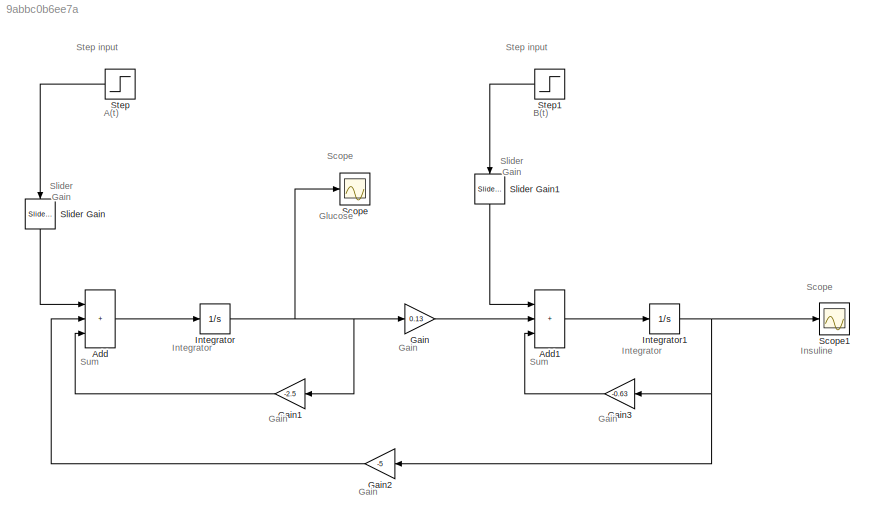
MODEL slx_9abbc0b6ee7a
KIND model
CONFIG AbsTol = auto
CONFIG EnableMultiTasking = off
CONFIG FixedStep = auto
CONFIG MaxStep = auto
CONFIG MinStep = auto
CONFIG RelTol = 1e-3
CONFIG SampleTimeConstraint = Unconstrained
CONFIG SolverName = VariableStepAuto
CONFIG StartTime = 0.0
CONFIG StopTime = 10.0
BLOCK [Sum] Add
  IconShape = rectangular
  Inputs = +++
BLOCK [Sum] Add1
  IconShape = rectangular
  Inputs = +++
BLOCK [Gain] Gain
  Gain = 0.13
BLOCK [Gain] Gain1
  Gain = -2.5
  NameLocation = top
BLOCK [Gain] Gain2
  Gain = -5
  NameLocation = top
BLOCK [Gain] Gain3
  Gain = -0.63
  NameLocation = top
BLOCK [Integrator] Integrator
BLOCK [Integrator] Integrator1
BLOCK [Scope] Scope
  Floating = off
  NumInputPorts = 1
  ScopeSpecificationString = Simulink.scopes.TimeScopeBlockCfg('CurrentConfiguration', extmgr.ConfigurationSet(extmgr.Configuration('Core','General UI',true),extmgr.Configuration('Core','Source UI',true),extmgr.Configuration('Sources','WiredSimulink',true),extmgr.Configuration('Visuals','Time Domain',true,'SerializedDisplays',{struct('MinYLimReal','-0.03355','MaxYLimReal','0.30192','YLabelReal','','MinYLimMag','0.00000','MaxY...<+1385ch>
BLOCK [Scope] Scope1
  Floating = off
  NumInputPorts = 1
  ScopeSpecificationString = Simulink.scopes.TimeScopeBlockCfg('CurrentConfiguration', extmgr.ConfigurationSet(extmgr.Configuration('Core','General UI',true),extmgr.Configuration('Core','Source UI',true),extmgr.Configuration('Sources','WiredSimulink',true,'DataLoggingVariableName','ScopeData1'),extmgr.Configuration('Visuals','Time Domain',true,'SerializedDisplays',{struct('MinYLimReal','-0.01997','MaxYLimReal','0.17974','YLab...<+1427ch>
BLOCK [Reference] Slider Gain  REF=simulink/Math
Operations/Slider
Gain
  NameLocation = left
  SourceBlock = simulink/Math\nOperations/Slider\nGain
  SourceType = Slider Gain
BLOCK [Reference] Slider Gain1  REF=simulink/Math
Operations/Slider
Gain
  NameLocation = left
  SourceBlock = simulink/Math\nOperations/Slider\nGain
  SourceType = Slider Gain
BLOCK [Step] Step
  Before = 1
  NameLocation = top
  SampleTime = 0
BLOCK [Step] Step1
  Before = 1
  NameLocation = top
  SampleTime = 0
ANNOTATION (root): A(t)
ANNOTATION (root): B(t)
ANNOTATION (root): Gain
ANNOTATION (root): Glucose
ANNOTATION (root): Insuline
ANNOTATION (root): Integrator
ANNOTATION (root): Scope
ANNOTATION (root): Slider Gain
ANNOTATION (root): Step input
ANNOTATION (root): Sum
LINE Add1:1 -> Integrator1:1
LINE Add:1 -> Integrator:1
LINE Gain1:1 -> Add:3
LINE Gain2:1 -> Add:2
LINE Gain3:1 -> Add1:3
LINE Gain:1 -> Add1:2
NET Integrator1:1 -> Gain2:1, Gain3:1, Scope1:1
NET Integrator:1 -> Gain1:1, Gain:1, Scope:1
LINE Slider Gain1:1 -> Add1:1
LINE Slider Gain:1 -> Add:1
LINE Step1:1 -> Slider Gain1:1
LINE Step:1 -> Slider Gain:1
note: NET lines group one-source signal fan-out (src -> all destinations, sorted); 1:1 wires keep LINE
